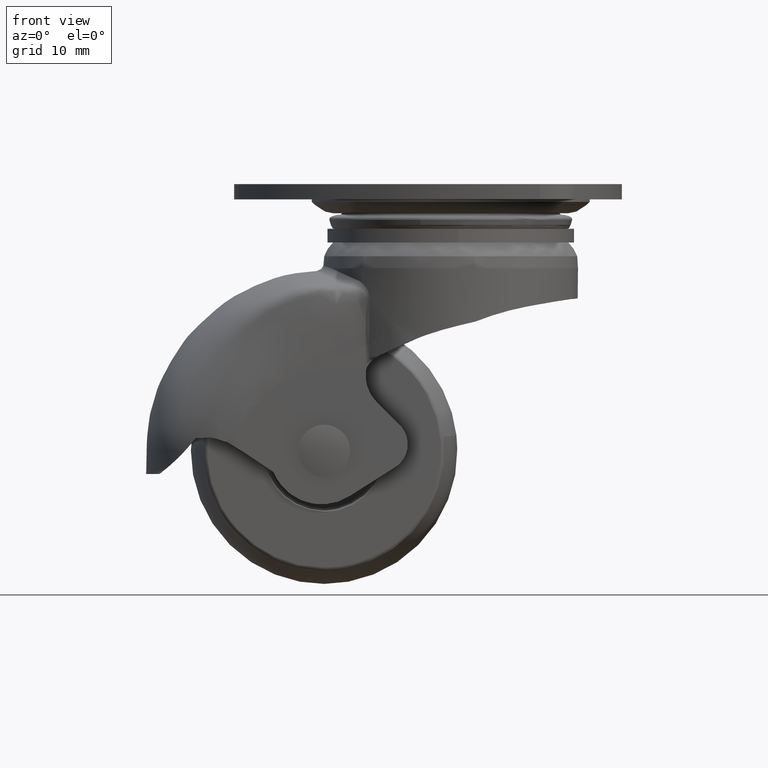
[diagram: clean part render]
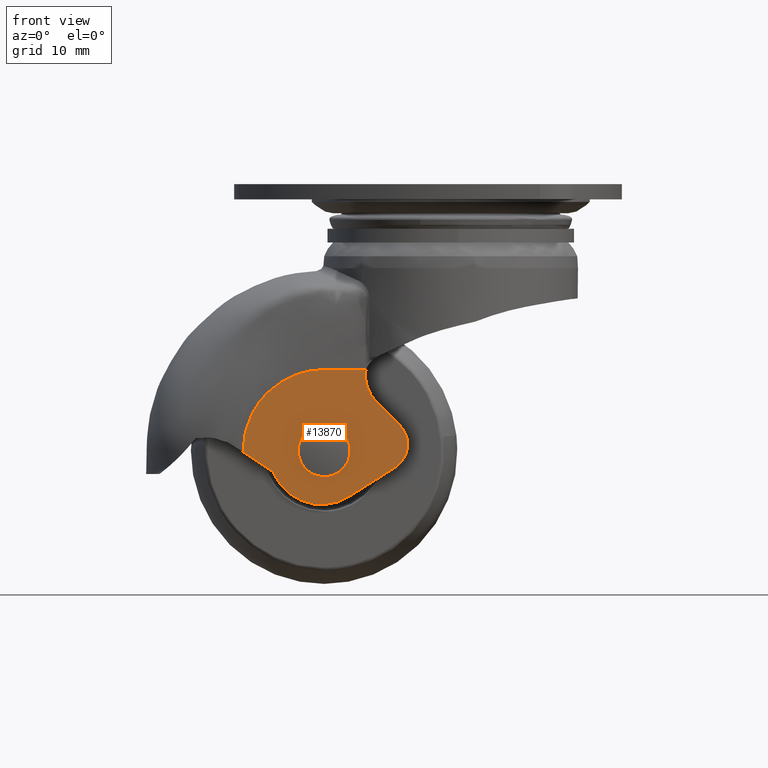
[diagram: same view with one face highlighted and labeled with its STEP entity id]
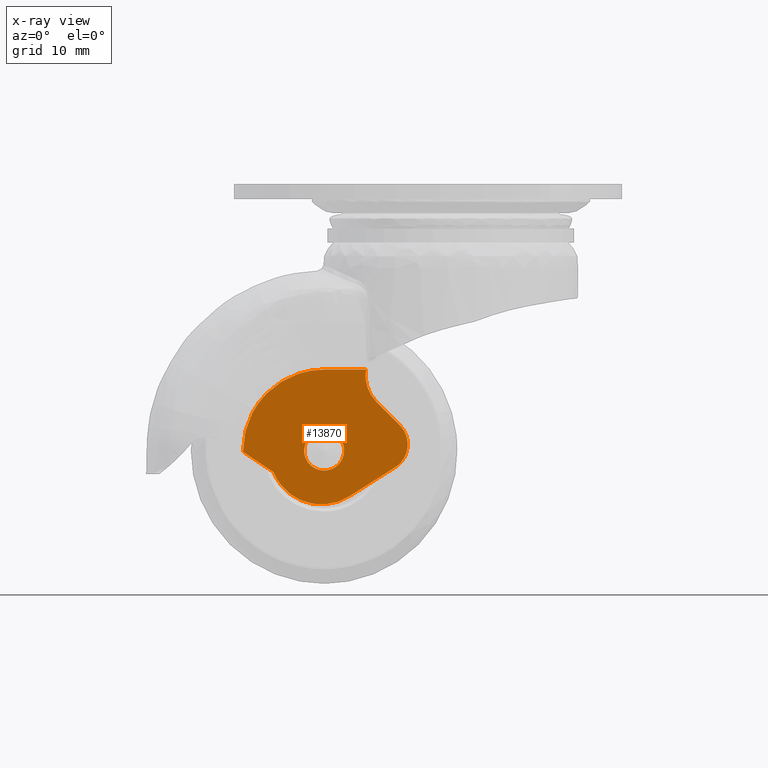
[diagram: x-ray of the same camera — body ghosted, the highlighted face saturated]
A machine part, front view. The second image highlights one B-rep face of the part: STEP entity #13870.
The next image is the same camera in x-ray: the body ghosted, the highlighted face saturated — about 0% of this face is hidden behind the body in this view.
In plain terms, the highlighted face is a freeform B-spline surface patch.
Its self-contained STEP definition (entity closure, byte-faithful):
#8103=CARTESIAN_POINT('',(-21.976798641466520,-14.550000000000001,-40.372384006320218));
#8104=VERTEX_POINT('',#8103);
#8110=CARTESIAN_POINT('',(-19.0,-14.550000000000001,-43.0));
#8111=VERTEX_POINT('',#8110);
#8112=CARTESIAN_POINT('',(-19.0,-14.550000000000001,-43.0));
#8113=CARTESIAN_POINT('',(-21.648095800305935,-14.550000000000008,-43.0));
#8114=CARTESIAN_POINT('',(-21.976798641466516,-14.550000000000001,-40.372384006320218));
#8122=(BOUNDED_CURVE()B_SPLINE_CURVE(2,(#8112,#8113,#8114),.UNSPECIFIED.,.F.,.U.)B_SPLINE_CURVE_WITH_KNOTS((3,3),(0.500000000000000,0.728526071020152),.UNSPECIFIED.)CURVE()GEOMETRIC_REPRESENTATION_ITEM()RATIONAL_B_SPLINE_CURVE((1.0,0.732265053904464,0.954005430256968))REPRESENTATION_ITEM(''));
#8123=EDGE_CURVE('',#8111,#8104,#8122,.T.);
#8125=CARTESIAN_POINT('',(-16.000114230809679,-14.550000000000001,-39.973820393254073));
#8126=VERTEX_POINT('',#8125);
#8127=CARTESIAN_POINT('',(-16.000114230809675,-14.550000000000002,-39.973820393254066));
#8128=CARTESIAN_POINT('',(-16.000000000000007,-14.549999999999999,-39.986909947287067));
#8129=CARTESIAN_POINT('',(-16.0,-14.550000000000001,-40.0));
#8130=CARTESIAN_POINT('',(-15.999999999999998,-14.550000000000002,-42.999999999999993));
#8131=CARTESIAN_POINT('',(-19.0,-14.550000000000001,-43.0));
#8139=(BOUNDED_CURVE()B_SPLINE_CURVE(2,(#8127,#8128,#8129,#8130,#8131),.UNSPECIFIED.,.F.,.U.)B_SPLINE_CURVE_WITH_KNOTS((3,2,3),(0.248460105635559,0.250000000000000,0.500000000000000),.UNSPECIFIED.)CURVE()GEOMETRIC_REPRESENTATION_ITEM()RATIONAL_B_SPLINE_CURVE((0.996414028032241,0.998195901531865,1.0,0.707106781186548,1.0))REPRESENTATION_ITEM(''));
#8140=EDGE_CURVE('',#8126,#8111,#8139,.T.);
#8220=CARTESIAN_POINT('',(-19.0,-14.550000000000001,-37.0));
#8221=VERTEX_POINT('',#8220);
#8222=CARTESIAN_POINT('',(-19.0,-14.550000000000001,-37.0));
#8223=CARTESIAN_POINT('',(-16.026066368712375,-14.550000000000006,-37.0));
#8224=CARTESIAN_POINT('',(-16.000114230809675,-14.550000000000002,-39.973820393254066));
#8232=(BOUNDED_CURVE()B_SPLINE_CURVE(2,(#8222,#8223,#8224),.UNSPECIFIED.,.F.,.U.)B_SPLINE_CURVE_WITH_KNOTS((3,3),(0.0,0.248460105635559),.UNSPECIFIED.)CURVE()GEOMETRIC_REPRESENTATION_ITEM()RATIONAL_B_SPLINE_CURVE((1.0,0.708910879654683,0.996414028032241))REPRESENTATION_ITEM(''));
#8233=EDGE_CURVE('',#8221,#8126,#8232,.T.);
#8235=CARTESIAN_POINT('',(-21.976798641466516,-14.549999999999999,-40.372384006320218));
#8236=CARTESIAN_POINT('',(-22.000000000000004,-14.550000000000002,-40.186914782682152));
#8237=CARTESIAN_POINT('',(-22.0,-14.550000000000001,-40.0));
#8238=CARTESIAN_POINT('',(-22.000000000000007,-14.550000000000002,-37.0));
#8239=CARTESIAN_POINT('',(-19.0,-14.550000000000001,-37.0));
#8247=(BOUNDED_CURVE()B_SPLINE_CURVE(2,(#8235,#8236,#8237,#8238,#8239),.UNSPECIFIED.,.F.,.U.)B_SPLINE_CURVE_WITH_KNOTS((3,2,3),(0.728526071020152,0.750000000000000,1.0),.UNSPECIFIED.)CURVE()GEOMETRIC_REPRESENTATION_ITEM()RATIONAL_B_SPLINE_CURVE((0.954005430256968,0.974841727282083,1.0,0.707106781186548,1.0))REPRESENTATION_ITEM(''));
#8248=EDGE_CURVE('',#8104,#8221,#8247,.T.);
#13722=CARTESIAN_POINT('',(-32.393377570560823,-14.550000000000001,-49.098137425476679));
#13723=CARTESIAN_POINT('',(-32.393377570560823,-14.550000000000001,-26.828626794798900));
#13724=CARTESIAN_POINT('',(-5.224336024457456,-14.550000000000001,-49.098137425476679));
#13725=CARTESIAN_POINT('',(-5.224336024457456,-14.550000000000001,-26.828626794798900));
#13726=B_SPLINE_SURFACE_WITH_KNOTS('',1,1,((#13722,#13724),(#13723,#13725)),.UNSPECIFIED.,.F.,.F.,.U.,(2,2),(2,2),(0.0,22.269510630677779),(0.0,27.169041546103362),.UNSPECIFIED.);
#13727=CARTESIAN_POINT('',(-11.145439816362840,-14.550000000000001,-32.686664715865803));
#13728=VERTEX_POINT('',#13727);
#13729=CARTESIAN_POINT('',(-7.657226152445430,-14.550000000000001,-36.169252321304100));
#13730=VERTEX_POINT('',#13729);
#13731=CARTESIAN_POINT('',(-11.145439816362840,-14.550000000000001,-32.686664715865803));
#13732=CARTESIAN_POINT('',(-7.657226152445430,-14.550000000000001,-36.169252321304100));
#13733=QUASI_UNIFORM_CURVE('',1,(#13731,#13732),.UNSPECIFIED.,.F.,.U.);
#13734=EDGE_CURVE('',#13728,#13730,#13733,.T.);
#13735=ORIENTED_EDGE('',*,*,#13734,.F.);
#13736=CARTESIAN_POINT('',(-12.730730015653720,-14.550000000000001,-28.024757255452300));
#13737=VERTEX_POINT('',#13736);
#13738=CARTESIAN_POINT('',(-11.145439816362840,-14.550000000000001,-32.686664715865803));
#13739=CARTESIAN_POINT('',(-13.088370783778275,-14.550000000000004,-30.746867808921436));
#13740=CARTESIAN_POINT('',(-12.730730015653730,-14.550000000000001,-28.024757255452300));
#13748=(BOUNDED_CURVE()B_SPLINE_CURVE(2,(#13738,#13739,#13740),.UNSPECIFIED.,.F.,.U.)CURVE()GEOMETRIC_REPRESENTATION_ITEM()QUASI_UNIFORM_CURVE()RATIONAL_B_SPLINE_CURVE((1.0,0.896752652619497,1.0))REPRESENTATION_ITEM(''));
#13749=EDGE_CURVE('',#13728,#13737,#13748,.T.);
#13750=ORIENTED_EDGE('',*,*,#13749,.T.);
#13751=CARTESIAN_POINT('',(-12.696323645292560,-14.550000000000001,-27.840455999999548));
#13752=VERTEX_POINT('',#13751);
#13753=CARTESIAN_POINT('',(-12.730730015653720,-14.550000000000001,-28.024757255452300));
#13754=CARTESIAN_POINT('',(-12.718501727635553,-14.550000000000006,-27.931677886604756));
#13755=CARTESIAN_POINT('',(-12.696323645292569,-14.550000000000001,-27.840455999999548));
#13763=(BOUNDED_CURVE()B_SPLINE_CURVE(2,(#13753,#13754,#13755),.UNSPECIFIED.,.F.,.U.)CURVE()GEOMETRIC_REPRESENTATION_ITEM()QUASI_UNIFORM_CURVE()RATIONAL_B_SPLINE_CURVE((1.0,0.998546140216642,1.0))REPRESENTATION_ITEM(''));
#13764=EDGE_CURVE('',#13737,#13752,#13763,.T.);
#13765=ORIENTED_EDGE('',*,*,#13764,.T.);
#13766=CARTESIAN_POINT('',(-19.000000000004398,-14.550000000000001,-27.839956001394551));
#13767=VERTEX_POINT('',#13766);
#13768=CARTESIAN_POINT('',(-19.000000000004398,-14.550000000000001,-27.839956001394551));
#13769=CARTESIAN_POINT('',(-16.898774548433661,-14.550000000000001,-27.840122667596280));
#13770=CARTESIAN_POINT('',(-14.797549096863090,-14.550000000000001,-27.840289333797930));
#13771=CARTESIAN_POINT('',(-12.696323645292560,-14.550000000000001,-27.840455999999548));
#13772=B_SPLINE_CURVE_WITH_KNOTS('',3,(#13768,#13769,#13770,#13771),.UNSPECIFIED.,.F.,.U.,(4,4),(2.0,2.331772439721395),.UNSPECIFIED.);
#13773=EDGE_CURVE('',#13767,#13752,#13772,.T.);
#13774=ORIENTED_EDGE('',*,*,#13773,.F.);
#13775=CARTESIAN_POINT('',(-27.596201150577048,-14.550000000000001,-31.400009912968802));
#13776=VERTEX_POINT('',#13775);
#13777=CARTESIAN_POINT('',(-27.596201150577048,-14.550000000000001,-31.400009912968802));
#13778=CARTESIAN_POINT('',(-25.395502804393331,-14.550000000000001,-29.201013471102112));
#13779=CARTESIAN_POINT('',(-22.356493908630249,-14.550000000000001,-27.840708150955859));
#13780=CARTESIAN_POINT('',(-19.000000000004398,-14.550000000000001,-27.839956001394551));
#13781=B_SPLINE_CURVE_WITH_KNOTS('',3,(#13777,#13778,#13779,#13780),.UNSPECIFIED.,.F.,.U.,(4,4),(1.500276548805635,1.999999917100315),.UNSPECIFIED.);
#13782=EDGE_CURVE('',#13776,#13767,#13781,.T.);
#13783=ORIENTED_EDGE('',*,*,#13782,.F.);
#13784=CARTESIAN_POINT('',(-31.159543999999851,-14.550000000000001,-39.999999145423203));
#13785=VERTEX_POINT('',#13784);
#13786=CARTESIAN_POINT('',(-31.159543999999851,-14.550000000000001,-39.999999145423203));
#13787=CARTESIAN_POINT('',(-31.158912146452391,-14.550000000000001,-36.641602769969190));
#13788=CARTESIAN_POINT('',(-29.797230997558589,-14.550000000000001,-33.601039512911207));
#13789=CARTESIAN_POINT('',(-27.596201150577048,-14.550000000000001,-31.400009912968802));
#13790=B_SPLINE_CURVE_WITH_KNOTS('',3,(#13786,#13787,#13788,#13789),.UNSPECIFIED.,.F.,.U.,(4,4),(1.000000084835775,1.500000000000040),.UNSPECIFIED.);
#13791=EDGE_CURVE('',#13785,#13776,#13790,.T.);
#13792=ORIENTED_EDGE('',*,*,#13791,.F.);
#13793=CARTESIAN_POINT('',(-31.157816983188400,-14.550000000000001,-40.204930454616601));
#13794=VERTEX_POINT('',#13793);
#13795=CARTESIAN_POINT('',(-31.159543999999851,-14.550000000000001,-39.999999145423203));
#13796=CARTESIAN_POINT('',(-31.159544007201905,-14.550000000000004,-40.102472077121547));
#13797=CARTESIAN_POINT('',(-31.157816983188400,-14.550000000000001,-40.204930454616601));
#13805=(BOUNDED_CURVE()B_SPLINE_CURVE(2,(#13795,#13796,#13797),.UNSPECIFIED.,.F.,.U.)CURVE()GEOMETRIC_REPRESENTATION_ITEM()QUASI_UNIFORM_CURVE()RATIONAL_B_SPLINE_CURVE((1.0,0.999964491639722,1.0))REPRESENTATION_ITEM(''));
#13806=EDGE_CURVE('',#13785,#13794,#13805,.T.);
#13807=ORIENTED_EDGE('',*,*,#13806,.T.);
#13808=CARTESIAN_POINT('',(-26.596337769349351,-14.550000000000001,-43.233218426976201));
#13809=VERTEX_POINT('',#13808);
#13810=CARTESIAN_POINT('',(-31.157816983188461,-14.550000000000001,-40.204930454616687));
#13811=CARTESIAN_POINT('',(-28.840033417295018,-14.549999999999997,-41.663275504103687));
#13812=CARTESIAN_POINT('',(-26.596337769349400,-14.550000000000001,-43.233218426976293));
#13820=(BOUNDED_CURVE()B_SPLINE_CURVE(2,(#13810,#13811,#13812),.UNSPECIFIED.,.F.,.U.)CURVE()GEOMETRIC_REPRESENTATION_ITEM()QUASI_UNIFORM_CURVE()RATIONAL_B_SPLINE_CURVE((1.0,0.999700859279930,1.0))REPRESENTATION_ITEM(''));
#13821=EDGE_CURVE('',#13794,#13809,#13820,.T.);
#13822=ORIENTED_EDGE('',*,*,#13821,.T.);
#13823=CARTESIAN_POINT('',(-15.263557869565551,-14.550000000000001,-46.886288979788603));
#13824=VERTEX_POINT('',#13823);
#13825=CARTESIAN_POINT('',(-15.263557869565540,-14.550000000000001,-46.886288979788617));
#13826=CARTESIAN_POINT('',(-18.330591180033071,-14.550000000000006,-48.828409333223277));
#13827=CARTESIAN_POINT('',(-21.785743756631419,-14.550000000000001,-47.714656457954973));
#13828=CARTESIAN_POINT('',(-25.240896333229763,-14.550000000000006,-46.600903582686684));
#13829=CARTESIAN_POINT('',(-26.596337769349351,-14.550000000000001,-43.233218426976201));
#13837=(BOUNDED_CURVE()B_SPLINE_CURVE(2,(#13825,#13826,#13827,#13828,#13829),.UNSPECIFIED.,.F.,.U.)B_SPLINE_CURVE_WITH_KNOTS((3,2,3),(0.0,0.500000000000000,1.0),.UNSPECIFIED.)CURVE()GEOMETRIC_REPRESENTATION_ITEM()RATIONAL_B_SPLINE_CURVE((1.0,0.905533696519778,1.0,0.905533696519778,1.0))REPRESENTATION_ITEM(''));
#13838=EDGE_CURVE('',#13824,#13809,#13837,.T.);
#13839=ORIENTED_EDGE('',*,*,#13838,.F.);
#13840=CARTESIAN_POINT('',(-8.358260999999800,-14.550000000000001,-42.513686999999898));
#13841=VERTEX_POINT('',#13840);
#13842=CARTESIAN_POINT('',(-8.358260999999800,-14.550000000000001,-42.513686999999898));
#13843=CARTESIAN_POINT('',(-15.263557869565551,-14.550000000000001,-46.886288979788603));
#13844=QUASI_UNIFORM_CURVE('',1,(#13842,#13843),.UNSPECIFIED.,.F.,.U.);
#13845=EDGE_CURVE('',#13841,#13824,#13844,.T.);
#13846=ORIENTED_EDGE('',*,*,#13845,.F.);
#13847=CARTESIAN_POINT('',(-7.657226152445490,-14.550000000000001,-36.169252321304157));
#13848=CARTESIAN_POINT('',(-6.266943305491668,-14.550000000000004,-37.557292561295903));
#13849=CARTESIAN_POINT('',(-6.482707645333065,-14.550000000000001,-39.509979902378227));
#13850=CARTESIAN_POINT('',(-6.698471985174463,-14.550000000000004,-41.462667243460551));
#13851=CARTESIAN_POINT('',(-8.358260999999800,-14.550000000000001,-42.513686999999898));
#13859=(BOUNDED_CURVE()B_SPLINE_CURVE(2,(#13847,#13848,#13849,#13850,#13851),.UNSPECIFIED.,.F.,.U.)B_SPLINE_CURVE_WITH_KNOTS((3,2,3),(0.0,0.500000000000000,1.0),.UNSPECIFIED.)CURVE()GEOMETRIC_REPRESENTATION_ITEM()RATIONAL_B_SPLINE_CURVE((1.0,0.901259993072698,1.0,0.901259993072698,1.0))REPRESENTATION_ITEM(''));
#13860=EDGE_CURVE('',#13730,#13841,#13859,.T.);
#13861=ORIENTED_EDGE('',*,*,#13860,.F.);
#13862=EDGE_LOOP('',(#13735,#13750,#13765,#13774,#13783,#13792,#13807,#13822,#13839,#13846,#13861));
#13863=FACE_OUTER_BOUND('',#13862,.T.);
#13864=ORIENTED_EDGE('',*,*,#8233,.T.);
#13865=ORIENTED_EDGE('',*,*,#8140,.T.);
#13866=ORIENTED_EDGE('',*,*,#8123,.T.);
#13867=ORIENTED_EDGE('',*,*,#8248,.T.);
#13868=EDGE_LOOP('',(#13864,#13865,#13866,#13867));
#13869=FACE_BOUND('',#13868,.T.);
#13870=ADVANCED_FACE('',(#13863,#13869),#13726,.F.);